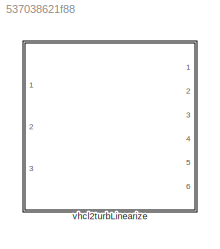
MODEL slx_537038621f88
KIND library
CONFIG AbsTol = auto
CONFIG EnableMultiTasking = off
CONFIG FixedStep = auto
CONFIG MaxStep = auto
CONFIG MinStep = auto
CONFIG RelTol = 1e-3
CONFIG SampleTimeConstraint = Unconstrained
CONFIG SolverName = VariableStepAuto
CONFIG StartTime = 0.0
CONFIG StopTime = 10.0
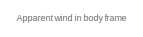
[diagram: vhcl2turbLinearize - part 1/3, top center region]
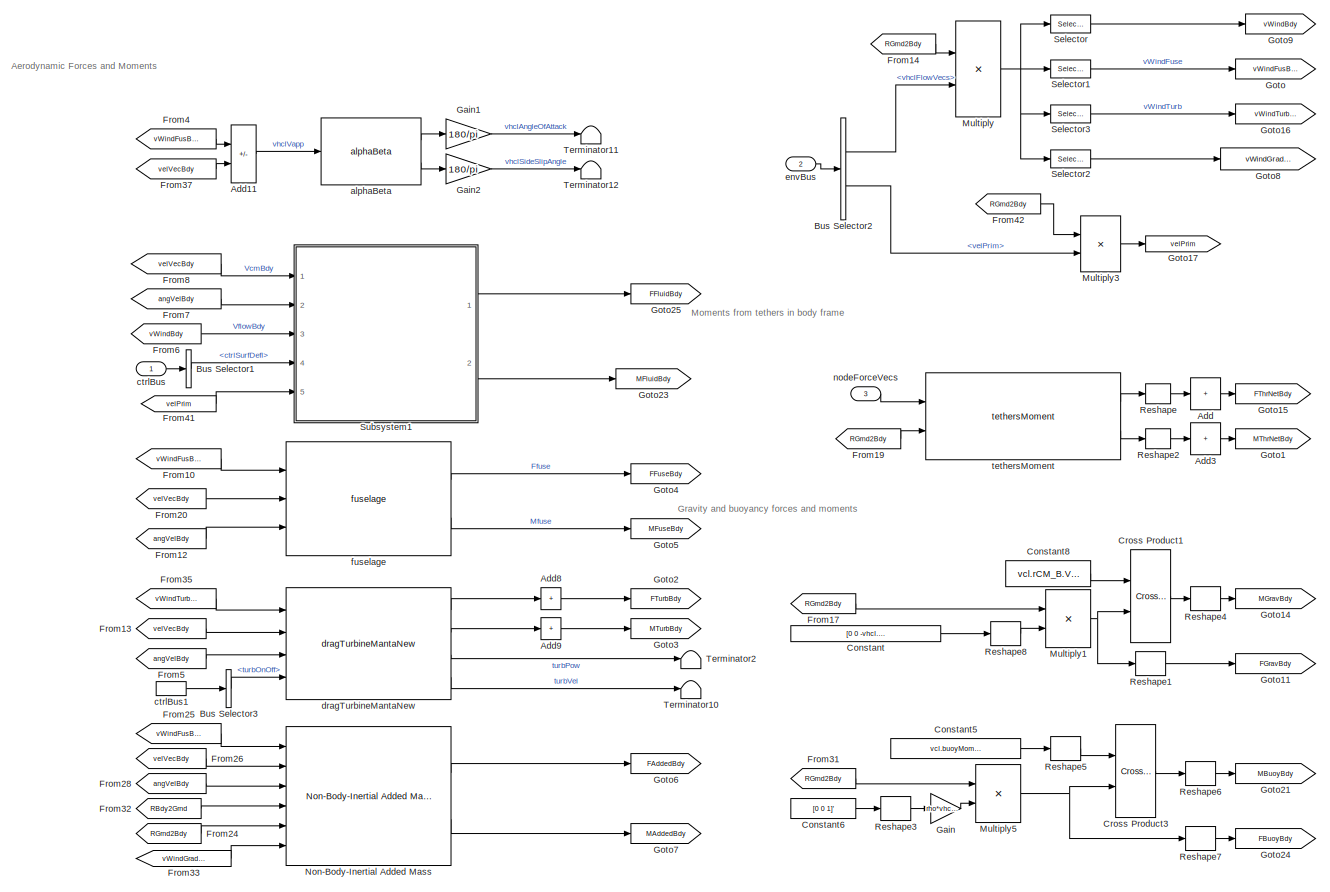
[diagram: vhcl2turbLinearize - part 2/3, full width, top band]
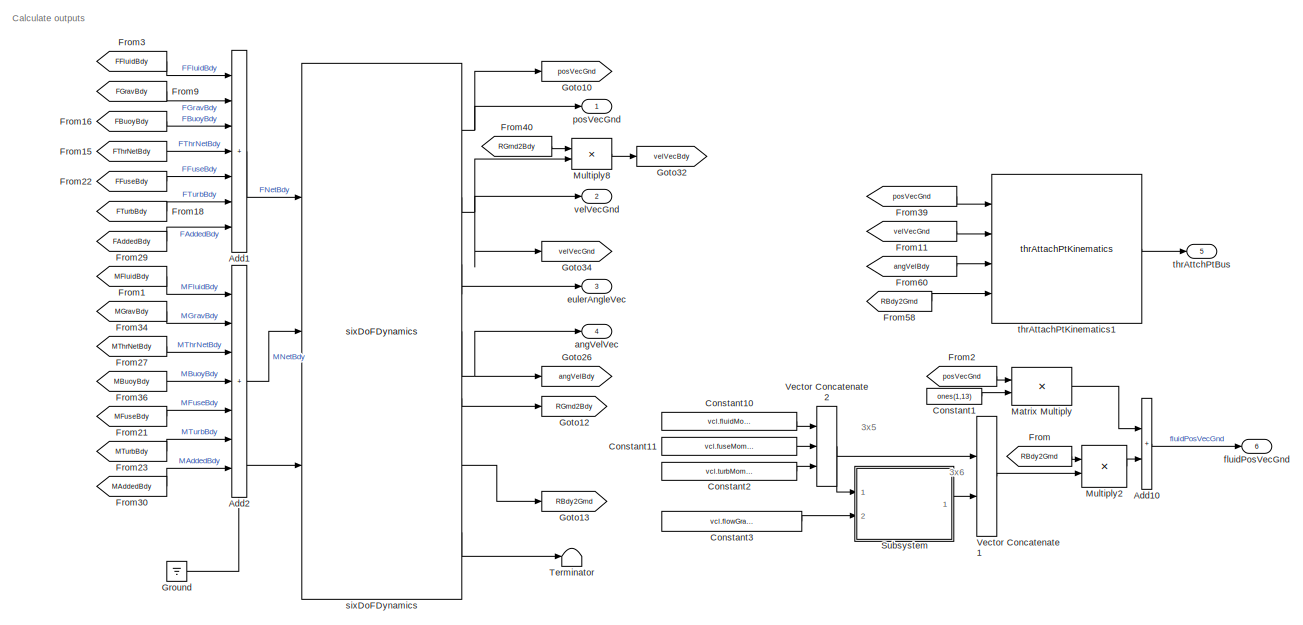
[diagram: vhcl2turbLinearize - part 3/3, full width, bottom band]
BLOCK [SubSystem] vhcl2turbLinearize
  Ports = [3, 6]
  RequestExecContextInheritance = off
  VariantControl = strcmpi(VEHICLE,'vehicleManta2Rot')
BLOCK [Sum] vhcl2turbLinearize/Add
  CollapseDim = 2
  CollapseMode = Specified dimension
  IconShape = rectangular
  Inputs = +
  Ports = [1, 1]
BLOCK [Sum] vhcl2turbLinearize/Add1
  IconShape = rectangular
  Inputs = +++++++
  Ports = [7, 1]
BLOCK [Sum] vhcl2turbLinearize/Add10
  IconShape = rectangular
  Ports = [2, 1]
BLOCK [Sum] vhcl2turbLinearize/Add11
  IconShape = rectangular
  Inputs = +-
  Ports = [2, 1]
BLOCK [Sum] vhcl2turbLinearize/Add2
  IconShape = rectangular
  Inputs = +++++++
  Ports = [7, 1]
BLOCK [Sum] vhcl2turbLinearize/Add3
  CollapseDim = 2
  CollapseMode = Specified dimension
  IconShape = rectangular
  Inputs = +
  Ports = [1, 1]
BLOCK [Sum] vhcl2turbLinearize/Add8
  CollapseDim = 2
  CollapseMode = Specified dimension
  Commented = on
  IconShape = rectangular
  Inputs = 1
  Ports = [1, 1]
BLOCK [Sum] vhcl2turbLinearize/Add9
  CollapseDim = 2
  CollapseMode = Specified dimension
  Commented = on
  IconShape = rectangular
  Inputs = 1
  Ports = [1, 1]
BLOCK [BusSelector] vhcl2turbLinearize/Bus Selector1
  OutputSignals = ctrlSurfDefl
  Ports = [1, 1]
BLOCK [BusSelector] vhcl2turbLinearize/Bus Selector2
  OutputSignals = vhclFlowVecs,velPrim
  Ports = [1, 2]
BLOCK [BusSelector] vhcl2turbLinearize/Bus Selector3
  Commented = on
  OutputSignals = turbOnOff
  Ports = [1, 1]
BLOCK [Constant] vhcl2turbLinearize/Constant
  Value = [0 0 -vhcl.mass.Value*grav]
BLOCK [Constant] vhcl2turbLinearize/Constant1
  Value = ones(1,13)
  VectorParams1D = off
BLOCK [Constant] vhcl2turbLinearize/Constant10
  Value = vcl.fluidMomentArms.Value
BLOCK [Constant] vhcl2turbLinearize/Constant11
  Value = vcl.fuseMomentArm.Value
BLOCK [Constant] vhcl2turbLinearize/Constant2
  Value = vcl.turbMomentArms.Value
BLOCK [Constant] vhcl2turbLinearize/Constant3
  Value = vcl.flowGradientDist.Value
BLOCK [Constant] vhcl2turbLinearize/Constant5
  Value = vcl.buoyMomentArm.Value
BLOCK [Constant] vhcl2turbLinearize/Constant6
  Value = [0 0 1]'
BLOCK [Constant] vhcl2turbLinearize/Constant8
  Value = vcl.rCM_B.Value
BLOCK [Reference] vhcl2turbLinearize/Cross Product1  REF=vrlib/Utilities/Cross Product
  Ports = [2, 1]
  SourceBlock = vrlib/Utilities/Cross Product
  SourceProductBaseCode = SL
  SourceType = Cross Product
BLOCK [Reference] vhcl2turbLinearize/Cross Product3  REF=vrlib/Utilities/Cross Product
  Ports = [2, 1]
  SourceBlock = vrlib/Utilities/Cross Product
  SourceProductBaseCode = SL
  SourceType = Cross Product
BLOCK [From] vhcl2turbLinearize/From
  GotoTag = RBdy2Grnd
BLOCK [From] vhcl2turbLinearize/From1
  GotoTag = MFluidBdy
BLOCK [From] vhcl2turbLinearize/From10
  GotoTag = vWindFusBdy
BLOCK [From] vhcl2turbLinearize/From11
  GotoTag = velVecGnd
BLOCK [From] vhcl2turbLinearize/From12
  GotoTag = angVelBdy
BLOCK [From] vhcl2turbLinearize/From13
  GotoTag = velVecBdy
BLOCK [From] vhcl2turbLinearize/From14
  GotoTag = RGrnd2Bdy
BLOCK [From] vhcl2turbLinearize/From15
  GotoTag = FThrNetBdy
BLOCK [From] vhcl2turbLinearize/From16
  GotoTag = FBuoyBdy
BLOCK [From] vhcl2turbLinearize/From17
  GotoTag = RGrnd2Bdy
BLOCK [From] vhcl2turbLinearize/From18
  GotoTag = FTurbBdy
BLOCK [From] vhcl2turbLinearize/From19
  GotoTag = RGrnd2Bdy
BLOCK [From] vhcl2turbLinearize/From2
  GotoTag = posVecGnd
BLOCK [From] vhcl2turbLinearize/From20
  GotoTag = velVecBdy
BLOCK [From] vhcl2turbLinearize/From21
  GotoTag = MFuseBdy
BLOCK [From] vhcl2turbLinearize/From22
  GotoTag = FFuseBdy
BLOCK [From] vhcl2turbLinearize/From23
  GotoTag = MTurbBdy
BLOCK [From] vhcl2turbLinearize/From24
  GotoTag = RGrnd2Bdy
BLOCK [From] vhcl2turbLinearize/From25
  GotoTag = vWindFusBdy
BLOCK [From] vhcl2turbLinearize/From26
  GotoTag = velVecBdy
BLOCK [From] vhcl2turbLinearize/From27
  GotoTag = MThrNetBdy
BLOCK [From] vhcl2turbLinearize/From28
  GotoTag = angVelBdy
BLOCK [From] vhcl2turbLinearize/From29
  GotoTag = FAddedBdy
BLOCK [From] vhcl2turbLinearize/From3
  GotoTag = FFluidBdy
BLOCK [From] vhcl2turbLinearize/From30
  GotoTag = MAddedBdy
BLOCK [From] vhcl2turbLinearize/From31
  GotoTag = RGrnd2Bdy
BLOCK [From] vhcl2turbLinearize/From32
  GotoTag = RBdy2Grnd
BLOCK [From] vhcl2turbLinearize/From33
  GotoTag = vWindGradGrnd
BLOCK [From] vhcl2turbLinearize/From34
  GotoTag = MGravBdy
BLOCK [From] vhcl2turbLinearize/From35
  GotoTag = vWindTurbBdy
BLOCK [From] vhcl2turbLinearize/From36
  GotoTag = MBuoyBdy
BLOCK [From] vhcl2turbLinearize/From37
  GotoTag = velVecBdy
BLOCK [From] vhcl2turbLinearize/From39
  GotoTag = posVecGnd
BLOCK [From] vhcl2turbLinearize/From4
  GotoTag = vWindFusBdy
BLOCK [From] vhcl2turbLinearize/From40
  GotoTag = RGrnd2Bdy
BLOCK [From] vhcl2turbLinearize/From41
  GotoTag = velPrim
BLOCK [From] vhcl2turbLinearize/From42
  GotoTag = RGrnd2Bdy
BLOCK [From] vhcl2turbLinearize/From5
  GotoTag = angVelBdy
BLOCK [From] vhcl2turbLinearize/From58
  GotoTag = RBdy2Grnd
BLOCK [From] vhcl2turbLinearize/From6
  GotoTag = vWindBdy
BLOCK [From] vhcl2turbLinearize/From60
  GotoTag = angVelBdy
BLOCK [From] vhcl2turbLinearize/From7
  GotoTag = angVelBdy
BLOCK [From] vhcl2turbLinearize/From8
  GotoTag = velVecBdy
BLOCK [From] vhcl2turbLinearize/From9
  GotoTag = FGravBdy
BLOCK [Gain] vhcl2turbLinearize/Gain
  Gain = rho*vhcl.volume.Value*grav
BLOCK [Gain] vhcl2turbLinearize/Gain1
  Gain = 180/pi
BLOCK [Gain] vhcl2turbLinearize/Gain2
  Gain = 180/pi
BLOCK [Goto] vhcl2turbLinearize/Goto
  GotoTag = vWindFusBdy
BLOCK [Goto] vhcl2turbLinearize/Goto1
  GotoTag = MThrNetBdy
BLOCK [Goto] vhcl2turbLinearize/Goto10
  GotoTag = posVecGnd
BLOCK [Goto] vhcl2turbLinearize/Goto11
  GotoTag = FGravBdy
BLOCK [Goto] vhcl2turbLinearize/Goto12
  GotoTag = RGrnd2Bdy
BLOCK [Goto] vhcl2turbLinearize/Goto13
  GotoTag = RBdy2Grnd
BLOCK [Goto] vhcl2turbLinearize/Goto14
  GotoTag = MGravBdy
BLOCK [Goto] vhcl2turbLinearize/Goto15
  GotoTag = FThrNetBdy
BLOCK [Goto] vhcl2turbLinearize/Goto16
  GotoTag = vWindTurbBdy
BLOCK [Goto] vhcl2turbLinearize/Goto17
  GotoTag = velPrim
BLOCK [Goto] vhcl2turbLinearize/Goto2
  GotoTag = FTurbBdy
BLOCK [Goto] vhcl2turbLinearize/Goto21
  GotoTag = MBuoyBdy
BLOCK [Goto] vhcl2turbLinearize/Goto23
  GotoTag = MFluidBdy
BLOCK [Goto] vhcl2turbLinearize/Goto24
  GotoTag = FBuoyBdy
BLOCK [Goto] vhcl2turbLinearize/Goto25
  GotoTag = FFluidBdy
BLOCK [Goto] vhcl2turbLinearize/Goto26
  GotoTag = angVelBdy
BLOCK [Goto] vhcl2turbLinearize/Goto3
  GotoTag = MTurbBdy
BLOCK [Goto] vhcl2turbLinearize/Goto32
  GotoTag = velVecBdy
BLOCK [Goto] vhcl2turbLinearize/Goto34
  GotoTag = velVecGnd
BLOCK [Goto] vhcl2turbLinearize/Goto4
  GotoTag = FFuseBdy
BLOCK [Goto] vhcl2turbLinearize/Goto5
  GotoTag = MFuseBdy
BLOCK [Goto] vhcl2turbLinearize/Goto6
  GotoTag = FAddedBdy
BLOCK [Goto] vhcl2turbLinearize/Goto7
  GotoTag = MAddedBdy
BLOCK [Goto] vhcl2turbLinearize/Goto8
  GotoTag = vWindGradGrnd
BLOCK [Goto] vhcl2turbLinearize/Goto9
  GotoTag = vWindBdy
BLOCK [Ground] vhcl2turbLinearize/Ground
BLOCK [Product] vhcl2turbLinearize/Matrix Multiply
  Multiplication = Matrix(*)
  Ports = [2, 1]
BLOCK [Product] vhcl2turbLinearize/Multiply
  Multiplication = Matrix(*)
  Ports = [2, 1]
BLOCK [Product] vhcl2turbLinearize/Multiply1
  Multiplication = Matrix(*)
  Ports = [2, 1]
BLOCK [Product] vhcl2turbLinearize/Multiply2
  Multiplication = Matrix(*)
  Ports = [2, 1]
BLOCK [Product] vhcl2turbLinearize/Multiply3
  Multiplication = Matrix(*)
  Ports = [2, 1]
BLOCK [Product] vhcl2turbLinearize/Multiply5
  Multiplication = Matrix(*)
  Ports = [2, 1]
BLOCK [Product] vhcl2turbLinearize/Multiply8
  Multiplication = Matrix(*)
  Ports = [2, 1]
BLOCK [Reference] vhcl2turbLinearize/Non-Body-Inertial Added Mass  REF=addedMass_cl/Non-Body-Inertial Added Mass
  Ports = [6, 2]
  SourceBlock = addedMass_cl/Non-Body-Inertial Added Mass
BLOCK [Reshape] vhcl2turbLinearize/Reshape
  OutputDimensionality = Customize
  OutputDimensions = [3 vcl.numTethers.Value]
  Ports = [1, 1]
BLOCK [Reshape] vhcl2turbLinearize/Reshape1
  OutputDimensionality = Column vector (2-D)
  Ports = [1, 1]
BLOCK [Reshape] vhcl2turbLinearize/Reshape2
  OutputDimensionality = Customize
  OutputDimensions = [3 vcl.numTethers.Value]
  Ports = [1, 1]
BLOCK [Reshape] vhcl2turbLinearize/Reshape3
  OutputDimensionality = Column vector (2-D)
  Ports = [1, 1]
BLOCK [Reshape] vhcl2turbLinearize/Reshape4
  OutputDimensionality = Column vector (2-D)
  Ports = [1, 1]
BLOCK [Reshape] vhcl2turbLinearize/Reshape5
  OutputDimensionality = Column vector (2-D)
  Ports = [1, 1]
BLOCK [Reshape] vhcl2turbLinearize/Reshape6
  OutputDimensionality = Column vector (2-D)
  Ports = [1, 1]
BLOCK [Reshape] vhcl2turbLinearize/Reshape7
  OutputDimensionality = Column vector (2-D)
  Ports = [1, 1]
BLOCK [Reshape] vhcl2turbLinearize/Reshape8
  OutputDimensionality = Column vector (2-D)
  Ports = [1, 1]
BLOCK [Selector] vhcl2turbLinearize/Selector
  IndexOptions = Select all,Index vector (dialog)
  Indices = [1 3],1:4
  InputPortWidth = 3
  NumberOfDimensions = 2
  OutputSizes = 1,1
  Ports = [1, 1]
BLOCK [Selector] vhcl2turbLinearize/Selector1
  IndexOptions = Select all,Index vector (dialog)
  Indices = [1 3],5
  InputPortWidth = 3
  NumberOfDimensions = 2
  OutputSizes = 1,1
  Ports = [1, 1]
BLOCK [Selector] vhcl2turbLinearize/Selector2
  IndexOptions = Select all,Index vector (dialog)
  Indices = [1 3],8:13
  InputPortWidth = 3
  NumberOfDimensions = 2
  OutputSizes = 1,1
  Ports = [1, 1]
BLOCK [Selector] vhcl2turbLinearize/Selector3
  IndexOptions = Select all,Index vector (dialog)
  Indices = [1 3],6:7
  InputPortWidth = 3
  NumberOfDimensions = 2
  OutputSizes = 1,1
  Ports = [1, 1]
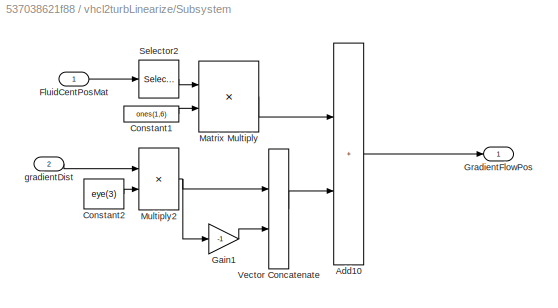
BLOCK [SubSystem] vhcl2turbLinearize/Subsystem
  Ports = [2, 1]
  RequestExecContextInheritance = off
BLOCK [Sum] vhcl2turbLinearize/Subsystem/Add10
  IconShape = rectangular
  Ports = [2, 1]
BLOCK [Constant] vhcl2turbLinearize/Subsystem/Constant1
  Value = ones(1,6)
  VectorParams1D = off
BLOCK [Constant] vhcl2turbLinearize/Subsystem/Constant2
  Value = eye(3)
BLOCK [Inport] vhcl2turbLinearize/Subsystem/FluidCentPosMat
BLOCK [Gain] vhcl2turbLinearize/Subsystem/Gain1
  Gain = -1
BLOCK [Outport] vhcl2turbLinearize/Subsystem/GradientFlowPos
  VectorParamsAs1DForOutWhenUnconnected = off
BLOCK [Product] vhcl2turbLinearize/Subsystem/Matrix Multiply
  Multiplication = Matrix(*)
  Ports = [2, 1]
BLOCK [Product] vhcl2turbLinearize/Subsystem/Multiply2
  Ports = [2, 1]
BLOCK [Selector] vhcl2turbLinearize/Subsystem/Selector2
  IndexOptions = Select all,Index vector (dialog)
  Indices = [1 3],5
  InputPortWidth = 3
  NumberOfDimensions = 2
  OutputSizes = 1,1
  Ports = [1, 1]
BLOCK [Concatenate] vhcl2turbLinearize/Subsystem/Vector Concatenate
  ConcatenateDimension = 2
  Mode = Multidimensional array
  Ports = [2, 1]
BLOCK [Inport] vhcl2turbLinearize/Subsystem/gradientDist
  Port = 2
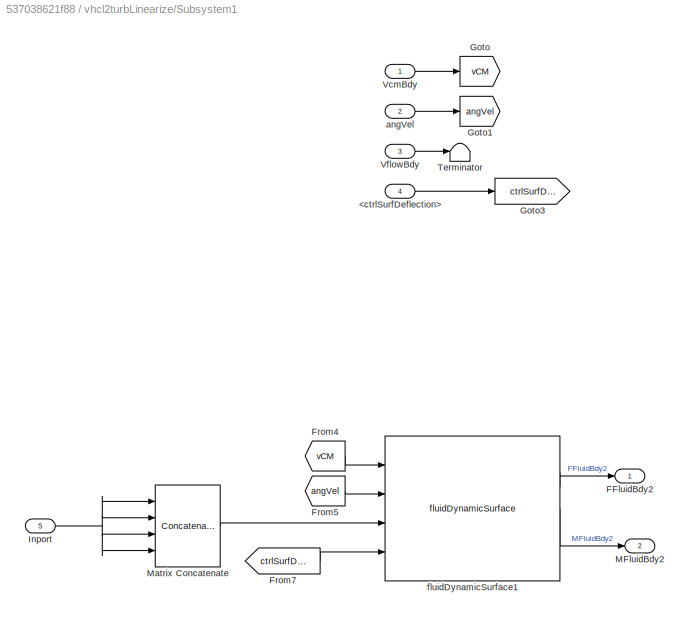
BLOCK [SubSystem] vhcl2turbLinearize/Subsystem1
  Ports = [5, 2]
  RequestExecContextInheritance = off
BLOCK [Inport] vhcl2turbLinearize/Subsystem1/<ctrlSurfDeflection>
  Port = 4
BLOCK [Outport] vhcl2turbLinearize/Subsystem1/FFluidBdy2
BLOCK [From] vhcl2turbLinearize/Subsystem1/From4
  GotoTag = vCM
BLOCK [From] vhcl2turbLinearize/Subsystem1/From5
  GotoTag = angVel
BLOCK [From] vhcl2turbLinearize/Subsystem1/From7
  GotoTag = ctrlSurfDefl
BLOCK [Goto] vhcl2turbLinearize/Subsystem1/Goto
  GotoTag = vCM
BLOCK [Goto] vhcl2turbLinearize/Subsystem1/Goto1
  GotoTag = angVel
BLOCK [Goto] vhcl2turbLinearize/Subsystem1/Goto3
  GotoTag = ctrlSurfDefl
BLOCK [Inport] vhcl2turbLinearize/Subsystem1/Inport
  Port = 5
BLOCK [Outport] vhcl2turbLinearize/Subsystem1/MFluidBdy2
  Port = 2
BLOCK [Concatenate] vhcl2turbLinearize/Subsystem1/Matrix Concatenate
  ConcatenateDimension = 2
  Mode = Multidimensional array
  NumInputs = 4
  Ports = [4, 1]
BLOCK [Terminator] vhcl2turbLinearize/Subsystem1/Terminator
BLOCK [Inport] vhcl2turbLinearize/Subsystem1/VcmBdy
BLOCK [Inport] vhcl2turbLinearize/Subsystem1/VflowBdy
  Port = 3
BLOCK [Inport] vhcl2turbLinearize/Subsystem1/angVel
  Port = 2
BLOCK [Reference] vhcl2turbLinearize/Subsystem1/fluidDynamicSurface1  REF=Copy_of_fluidDynamicSurface_cl/fluidDynamicSurface
  Ports = [4, 3]
  SourceBlock = Copy_of_fluidDynamicSurface_cl/fluidDynamicSurface
BLOCK [Terminator] vhcl2turbLinearize/Terminator
BLOCK [Terminator] vhcl2turbLinearize/Terminator10
BLOCK [Terminator] vhcl2turbLinearize/Terminator11
BLOCK [Terminator] vhcl2turbLinearize/Terminator12
BLOCK [Terminator] vhcl2turbLinearize/Terminator2
BLOCK [Concatenate] vhcl2turbLinearize/Vector Concatenate1
  ConcatenateDimension = 2
  Mode = Multidimensional array
  Ports = [2, 1]
BLOCK [Concatenate] vhcl2turbLinearize/Vector Concatenate2
  ConcatenateDimension = 2
  Mode = Multidimensional array
  NumInputs = 3
  Ports = [3, 1]
BLOCK [Reference] vhcl2turbLinearize/alphaBeta  REF=alphaBeta_ul/alphaBeta
  Ports = [1, 2]
  SourceBlock = alphaBeta_ul/alphaBeta
  SourceType = SubSystem
BLOCK [Outport] vhcl2turbLinearize/angVelVec
  Port = 4
  VectorParamsAs1DForOutWhenUnconnected = off
BLOCK [Inport] vhcl2turbLinearize/ctrlBus
  OutDataTypeStr = Bus: fltCtrlBus
BLOCK [InportShadow] vhcl2turbLinearize/ctrlBus1
  OutDataTypeStr = Bus: fltCtrlBus
BLOCK [Reference] vhcl2turbLinearize/dragTurbineMantaNew  REF=dragTurbineMantaNew_ul/dragTurbineMantaNew
  Commented = on
  Ports = [4, 4]
  SourceBlock = dragTurbineMantaNew_ul/dragTurbineMantaNew
BLOCK [Inport] vhcl2turbLinearize/envBus
  OutDataTypeStr = Bus: envBus
  Port = 2
BLOCK [Outport] vhcl2turbLinearize/eulerAngleVec
  Port = 3
  VectorParamsAs1DForOutWhenUnconnected = off
BLOCK [Outport] vhcl2turbLinearize/fluidPosVecGnd
  Port = 6
  VectorParamsAs1DForOutWhenUnconnected = off
BLOCK [Reference] vhcl2turbLinearize/fuselage  REF=fuselage_cl/fuselage  (lib defined in slx_45091b95913d, slx_54a95fec013f)
  Ports = [3, 2]
  SourceBlock = fuselage_cl/fuselage
BLOCK [Inport] vhcl2turbLinearize/nodeForceVecs
  Port = 3
BLOCK [Outport] vhcl2turbLinearize/posVecGnd
  VectorParamsAs1DForOutWhenUnconnected = off
BLOCK [Reference] vhcl2turbLinearize/sixDoFDynamics  REF=sixDoFDynamics_cl/sixDoFDynamics
  Ports = [3, 7]
  SourceBlock = sixDoFDynamics_cl/sixDoFDynamics
BLOCK [Reference] vhcl2turbLinearize/tethersMoment  REF=tethersMoment_cl/tethersMoment
  Ports = [2, 2]
  SourceBlock = tethersMoment_cl/tethersMoment
BLOCK [Reference] vhcl2turbLinearize/thrAttachPtKinematics1  REF=thrAttachPtKinematics_ul/thrAttachPtKinematics
  Ports = [4, 1]
  SourceBlock = thrAttachPtKinematics_ul/thrAttachPtKinematics
BLOCK [Outport] vhcl2turbLinearize/thrAttchPtBus
  Port = 5
  VectorParamsAs1DForOutWhenUnconnected = off
BLOCK [Outport] vhcl2turbLinearize/velVecGnd
  Port = 2
  VectorParamsAs1DForOutWhenUnconnected = off
ANNOTATION vhcl2turbLinearize: 3x5
ANNOTATION vhcl2turbLinearize: 3x6
ANNOTATION vhcl2turbLinearize: Aerodynamic Forces and Moments
ANNOTATION vhcl2turbLinearize: Apparent wind in body frame
ANNOTATION vhcl2turbLinearize: Calculate outputs
ANNOTATION vhcl2turbLinearize: Gravity and buoyancy forces and moments
ANNOTATION vhcl2turbLinearize: Moments from tethers in body frame
LINE vhcl2turbLinearize/Add10:1 -> vhcl2turbLinearize/fluidPosVecGnd:1
LINE vhcl2turbLinearize/Add11:1 -> vhcl2turbLinearize/alphaBeta:1
LINE vhcl2turbLinearize/Add1:1 -> vhcl2turbLinearize/sixDoFDynamics:1
LINE vhcl2turbLinearize/Add2:1 -> vhcl2turbLinearize/sixDoFDynamics:2
LINE vhcl2turbLinearize/Add3:1 -> vhcl2turbLinearize/Goto1:1
LINE vhcl2turbLinearize/Add8:1 -> vhcl2turbLinearize/Goto2:1
LINE vhcl2turbLinearize/Add9:1 -> vhcl2turbLinearize/Goto3:1
LINE vhcl2turbLinearize/Add:1 -> vhcl2turbLinearize/Goto15:1
LINE vhcl2turbLinearize/Bus Selector1:1 -> vhcl2turbLinearize/Subsystem1:4
LINE vhcl2turbLinearize/Bus Selector2:1 -> vhcl2turbLinearize/Multiply:2
LINE vhcl2turbLinearize/Bus Selector2:2 -> vhcl2turbLinearize/Multiply3:2
LINE vhcl2turbLinearize/Bus Selector3:1 -> vhcl2turbLinearize/dragTurbineMantaNew:4
LINE vhcl2turbLinearize/Constant10:1 -> vhcl2turbLinearize/Vector Concatenate2:1
LINE vhcl2turbLinearize/Constant11:1 -> vhcl2turbLinearize/Vector Concatenate2:2
LINE vhcl2turbLinearize/Constant1:1 -> vhcl2turbLinearize/Matrix Multiply:2
LINE vhcl2turbLinearize/Constant2:1 -> vhcl2turbLinearize/Vector Concatenate2:3
LINE vhcl2turbLinearize/Constant3:1 -> vhcl2turbLinearize/Subsystem:2
LINE vhcl2turbLinearize/Constant5:1 -> vhcl2turbLinearize/Reshape5:1
LINE vhcl2turbLinearize/Constant6:1 -> vhcl2turbLinearize/Reshape3:1
LINE vhcl2turbLinearize/Constant8:1 -> vhcl2turbLinearize/Cross Product1:1
LINE vhcl2turbLinearize/Constant:1 -> vhcl2turbLinearize/Reshape8:1
LINE vhcl2turbLinearize/Cross Product1:1 -> vhcl2turbLinearize/Reshape4:1
LINE vhcl2turbLinearize/Cross Product3:1 -> vhcl2turbLinearize/Reshape6:1
LINE vhcl2turbLinearize/From10:1 -> vhcl2turbLinearize/fuselage:1
LINE vhcl2turbLinearize/From11:1 -> vhcl2turbLinearize/thrAttachPtKinematics1:2
LINE vhcl2turbLinearize/From12:1 -> vhcl2turbLinearize/fuselage:3
LINE vhcl2turbLinearize/From13:1 -> vhcl2turbLinearize/dragTurbineMantaNew:2
LINE vhcl2turbLinearize/From14:1 -> vhcl2turbLinearize/Multiply:1
LINE vhcl2turbLinearize/From15:1 -> vhcl2turbLinearize/Add1:4
LINE vhcl2turbLinearize/From16:1 -> vhcl2turbLinearize/Add1:3
LINE vhcl2turbLinearize/From17:1 -> vhcl2turbLinearize/Multiply1:1
LINE vhcl2turbLinearize/From18:1 -> vhcl2turbLinearize/Add1:6
LINE vhcl2turbLinearize/From19:1 -> vhcl2turbLinearize/tethersMoment:2
LINE vhcl2turbLinearize/From1:1 -> vhcl2turbLinearize/Add2:1
LINE vhcl2turbLinearize/From20:1 -> vhcl2turbLinearize/fuselage:2
LINE vhcl2turbLinearize/From21:1 -> vhcl2turbLinearize/Add2:5
LINE vhcl2turbLinearize/From22:1 -> vhcl2turbLinearize/Add1:5
LINE vhcl2turbLinearize/From23:1 -> vhcl2turbLinearize/Add2:6
LINE vhcl2turbLinearize/From24:1 -> vhcl2turbLinearize/Non-Body-Inertial Added Mass:5
LINE vhcl2turbLinearize/From25:1 -> vhcl2turbLinearize/Non-Body-Inertial Added Mass:1
LINE vhcl2turbLinearize/From26:1 -> vhcl2turbLinearize/Non-Body-Inertial Added Mass:2
LINE vhcl2turbLinearize/From27:1 -> vhcl2turbLinearize/Add2:3
LINE vhcl2turbLinearize/From28:1 -> vhcl2turbLinearize/Non-Body-Inertial Added Mass:3
LINE vhcl2turbLinearize/From29:1 -> vhcl2turbLinearize/Add1:7
LINE vhcl2turbLinearize/From2:1 -> vhcl2turbLinearize/Matrix Multiply:1
LINE vhcl2turbLinearize/From30:1 -> vhcl2turbLinearize/Add2:7
LINE vhcl2turbLinearize/From31:1 -> vhcl2turbLinearize/Multiply5:1
LINE vhcl2turbLinearize/From32:1 -> vhcl2turbLinearize/Non-Body-Inertial Added Mass:4
LINE vhcl2turbLinearize/From33:1 -> vhcl2turbLinearize/Non-Body-Inertial Added Mass:6
LINE vhcl2turbLinearize/From34:1 -> vhcl2turbLinearize/Add2:2
LINE vhcl2turbLinearize/From35:1 -> vhcl2turbLinearize/dragTurbineMantaNew:1
LINE vhcl2turbLinearize/From36:1 -> vhcl2turbLinearize/Add2:4
LINE vhcl2turbLinearize/From37:1 -> vhcl2turbLinearize/Add11:2
LINE vhcl2turbLinearize/From39:1 -> vhcl2turbLinearize/thrAttachPtKinematics1:1
LINE vhcl2turbLinearize/From3:1 -> vhcl2turbLinearize/Add1:1
LINE vhcl2turbLinearize/From40:1 -> vhcl2turbLinearize/Multiply8:1
LINE vhcl2turbLinearize/From41:1 -> vhcl2turbLinearize/Subsystem1:5
LINE vhcl2turbLinearize/From42:1 -> vhcl2turbLinearize/Multiply3:1
LINE vhcl2turbLinearize/From4:1 -> vhcl2turbLinearize/Add11:1
LINE vhcl2turbLinearize/From58:1 -> vhcl2turbLinearize/thrAttachPtKinematics1:4
LINE vhcl2turbLinearize/From5:1 -> vhcl2turbLinearize/dragTurbineMantaNew:3
LINE vhcl2turbLinearize/From60:1 -> vhcl2turbLinearize/thrAttachPtKinematics1:3
LINE vhcl2turbLinearize/From6:1 -> vhcl2turbLinearize/Subsystem1:3
LINE vhcl2turbLinearize/From7:1 -> vhcl2turbLinearize/Subsystem1:2
LINE vhcl2turbLinearize/From8:1 -> vhcl2turbLinearize/Subsystem1:1
LINE vhcl2turbLinearize/From9:1 -> vhcl2turbLinearize/Add1:2
LINE vhcl2turbLinearize/From:1 -> vhcl2turbLinearize/Multiply2:1
LINE vhcl2turbLinearize/Gain1:1 -> vhcl2turbLinearize/Terminator11:1
LINE vhcl2turbLinearize/Gain2:1 -> vhcl2turbLinearize/Terminator12:1
LINE vhcl2turbLinearize/Gain:1 -> vhcl2turbLinearize/Multiply5:2
LINE vhcl2turbLinearize/Ground:1 -> vhcl2turbLinearize/sixDoFDynamics:3
LINE vhcl2turbLinearize/Matrix Multiply:1 -> vhcl2turbLinearize/Add10:1
NET vhcl2turbLinearize/Multiply1:1 -> vhcl2turbLinearize/Cross Product1:2, vhcl2turbLinearize/Reshape1:1
LINE vhcl2turbLinearize/Multiply2:1 -> vhcl2turbLinearize/Add10:2
LINE vhcl2turbLinearize/Multiply3:1 -> vhcl2turbLinearize/Goto17:1
NET vhcl2turbLinearize/Multiply5:1 -> vhcl2turbLinearize/Cross Product3:2, vhcl2turbLinearize/Reshape7:1
LINE vhcl2turbLinearize/Multiply8:1 -> vhcl2turbLinearize/Goto32:1
NET vhcl2turbLinearize/Multiply:1 -> vhcl2turbLinearize/Selector1:1, vhcl2turbLinearize/Selector2:1, vhcl2turbLinearize/Selector3:1, vhcl2turbLinearize/Selector:1
LINE vhcl2turbLinearize/Non-Body-Inertial Added Mass:1 -> vhcl2turbLinearize/Goto6:1
LINE vhcl2turbLinearize/Non-Body-Inertial Added Mass:2 -> vhcl2turbLinearize/Goto7:1
LINE vhcl2turbLinearize/Reshape1:1 -> vhcl2turbLinearize/Goto11:1
LINE vhcl2turbLinearize/Reshape2:1 -> vhcl2turbLinearize/Add3:1
LINE vhcl2turbLinearize/Reshape3:1 -> vhcl2turbLinearize/Gain:1
LINE vhcl2turbLinearize/Reshape4:1 -> vhcl2turbLinearize/Goto14:1
LINE vhcl2turbLinearize/Reshape5:1 -> vhcl2turbLinearize/Cross Product3:1
LINE vhcl2turbLinearize/Reshape6:1 -> vhcl2turbLinearize/Goto21:1
LINE vhcl2turbLinearize/Reshape7:1 -> vhcl2turbLinearize/Goto24:1
LINE vhcl2turbLinearize/Reshape8:1 -> vhcl2turbLinearize/Multiply1:2
LINE vhcl2turbLinearize/Reshape:1 -> vhcl2turbLinearize/Add:1
LINE vhcl2turbLinearize/Selector1:1 -> vhcl2turbLinearize/Goto:1
LINE vhcl2turbLinearize/Selector2:1 -> vhcl2turbLinearize/Goto8:1
LINE vhcl2turbLinearize/Selector3:1 -> vhcl2turbLinearize/Goto16:1
LINE vhcl2turbLinearize/Selector:1 -> vhcl2turbLinearize/Goto9:1
LINE vhcl2turbLinearize/Subsystem/Add10:1 -> vhcl2turbLinearize/Subsystem/GradientFlowPos:1
LINE vhcl2turbLinearize/Subsystem/Constant1:1 -> vhcl2turbLinearize/Subsystem/Matrix Multiply:2
LINE vhcl2turbLinearize/Subsystem/Constant2:1 -> vhcl2turbLinearize/Subsystem/Multiply2:2
LINE vhcl2turbLinearize/Subsystem/FluidCentPosMat:1 -> vhcl2turbLinearize/Subsystem/Selector2:1
LINE vhcl2turbLinearize/Subsystem/Gain1:1 -> vhcl2turbLinearize/Subsystem/Vector Concatenate:2
LINE vhcl2turbLinearize/Subsystem/Matrix Multiply:1 -> vhcl2turbLinearize/Subsystem/Add10:1
NET vhcl2turbLinearize/Subsystem/Multiply2:1 -> vhcl2turbLinearize/Subsystem/Gain1:1, vhcl2turbLinearize/Subsystem/Vector Concatenate:1
LINE vhcl2turbLinearize/Subsystem/Selector2:1 -> vhcl2turbLinearize/Subsystem/Matrix Multiply:1
LINE vhcl2turbLinearize/Subsystem/Vector Concatenate:1 -> vhcl2turbLinearize/Subsystem/Add10:2
LINE vhcl2turbLinearize/Subsystem/gradientDist:1 -> vhcl2turbLinearize/Subsystem/Multiply2:1
LINE vhcl2turbLinearize/Subsystem1/<ctrlSurfDeflection>:1 -> vhcl2turbLinearize/Subsystem1/Goto3:1
LINE vhcl2turbLinearize/Subsystem1/From4:1 -> vhcl2turbLinearize/Subsystem1/fluidDynamicSurface1:1
LINE vhcl2turbLinearize/Subsystem1/From5:1 -> vhcl2turbLinearize/Subsystem1/fluidDynamicSurface1:2
LINE vhcl2turbLinearize/Subsystem1/From7:1 -> vhcl2turbLinearize/Subsystem1/fluidDynamicSurface1:4
NET vhcl2turbLinearize/Subsystem1/Inport:1 -> vhcl2turbLinearize/Subsystem1/Matrix Concatenate:1, vhcl2turbLinearize/Subsystem1/Matrix Concatenate:2, vhcl2turbLinearize/Subsystem1/Matrix Concatenate:3, vhcl2turbLinearize/Subsystem1/Matrix Concatenate:4
LINE vhcl2turbLinearize/Subsystem1/Matrix Concatenate:1 -> vhcl2turbLinearize/Subsystem1/fluidDynamicSurface1:3
LINE vhcl2turbLinearize/Subsystem1/VcmBdy:1 -> vhcl2turbLinearize/Subsystem1/Goto:1
LINE vhcl2turbLinearize/Subsystem1/VflowBdy:1 -> vhcl2turbLinearize/Subsystem1/Terminator:1
LINE vhcl2turbLinearize/Subsystem1/angVel:1 -> vhcl2turbLinearize/Subsystem1/Goto1:1
LINE vhcl2turbLinearize/Subsystem1/fluidDynamicSurface1:1 -> vhcl2turbLinearize/Subsystem1/FFluidBdy2:1
LINE vhcl2turbLinearize/Subsystem1/fluidDynamicSurface1:2 -> vhcl2turbLinearize/Subsystem1/MFluidBdy2:1
LINE vhcl2turbLinearize/Subsystem1:1 -> vhcl2turbLinearize/Goto25:1
LINE vhcl2turbLinearize/Subsystem1:2 -> vhcl2turbLinearize/Goto23:1
LINE vhcl2turbLinearize/Subsystem:1 -> vhcl2turbLinearize/Vector Concatenate1:2
LINE vhcl2turbLinearize/Vector Concatenate1:1 -> vhcl2turbLinearize/Multiply2:2
NET vhcl2turbLinearize/Vector Concatenate2:1 -> vhcl2turbLinearize/Subsystem:1, vhcl2turbLinearize/Vector Concatenate1:1
LINE vhcl2turbLinearize/alphaBeta:1 -> vhcl2turbLinearize/Gain1:1
LINE vhcl2turbLinearize/alphaBeta:2 -> vhcl2turbLinearize/Gain2:1
LINE vhcl2turbLinearize/ctrlBus1:1 -> vhcl2turbLinearize/Bus Selector3:1
LINE vhcl2turbLinearize/ctrlBus:1 -> vhcl2turbLinearize/Bus Selector1:1
LINE vhcl2turbLinearize/dragTurbineMantaNew:1 -> vhcl2turbLinearize/Add8:1
LINE vhcl2turbLinearize/dragTurbineMantaNew:2 -> vhcl2turbLinearize/Add9:1
LINE vhcl2turbLinearize/dragTurbineMantaNew:3 -> vhcl2turbLinearize/Terminator2:1
LINE vhcl2turbLinearize/dragTurbineMantaNew:4 -> vhcl2turbLinearize/Terminator10:1
LINE vhcl2turbLinearize/envBus:1 -> vhcl2turbLinearize/Bus Selector2:1
LINE vhcl2turbLinearize/fuselage:1 -> vhcl2turbLinearize/Goto4:1
LINE vhcl2turbLinearize/fuselage:2 -> vhcl2turbLinearize/Goto5:1
LINE vhcl2turbLinearize/nodeForceVecs:1 -> vhcl2turbLinearize/tethersMoment:1
NET vhcl2turbLinearize/sixDoFDynamics:1 -> vhcl2turbLinearize/Goto10:1, vhcl2turbLinearize/posVecGnd:1
NET vhcl2turbLinearize/sixDoFDynamics:2 -> vhcl2turbLinearize/Goto34:1, vhcl2turbLinearize/Multiply8:2, vhcl2turbLinearize/velVecGnd:1
LINE vhcl2turbLinearize/sixDoFDynamics:3 -> vhcl2turbLinearize/eulerAngleVec:1
NET vhcl2turbLinearize/sixDoFDynamics:4 -> vhcl2turbLinearize/Goto26:1, vhcl2turbLinearize/angVelVec:1
LINE vhcl2turbLinearize/sixDoFDynamics:5 -> vhcl2turbLinearize/Goto12:1
LINE vhcl2turbLinearize/sixDoFDynamics:6 -> vhcl2turbLinearize/Goto13:1
LINE vhcl2turbLinearize/sixDoFDynamics:7 -> vhcl2turbLinearize/Terminator:1
LINE vhcl2turbLinearize/tethersMoment:1 -> vhcl2turbLinearize/Reshape:1
LINE vhcl2turbLinearize/tethersMoment:2 -> vhcl2turbLinearize/Reshape2:1
LINE vhcl2turbLinearize/thrAttachPtKinematics1:1 -> vhcl2turbLinearize/thrAttchPtBus:1
note: NET lines group one-source signal fan-out (src -> all destinations, sorted); 1:1 wires keep LINE
